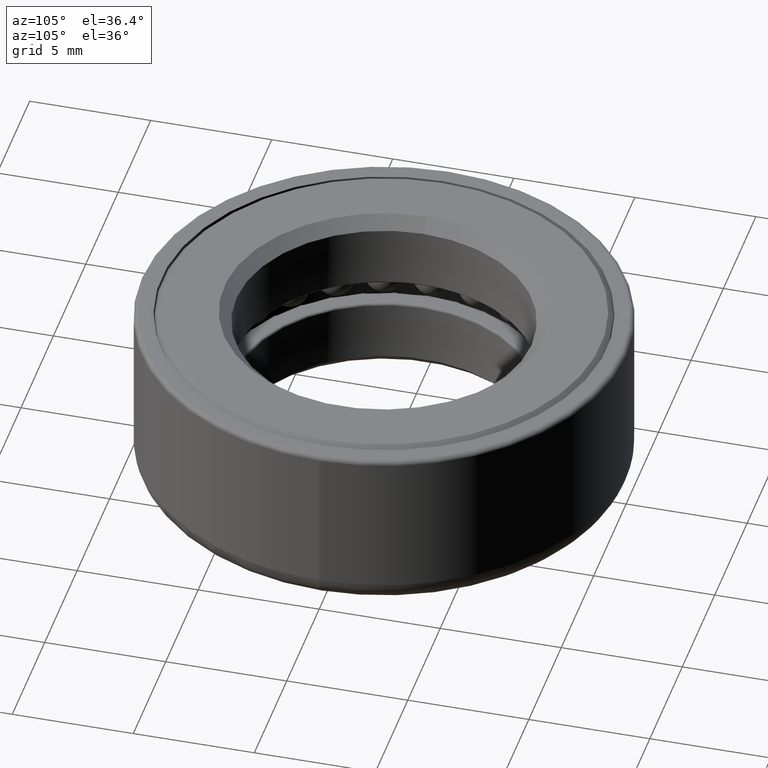
[diagram: clean part render]
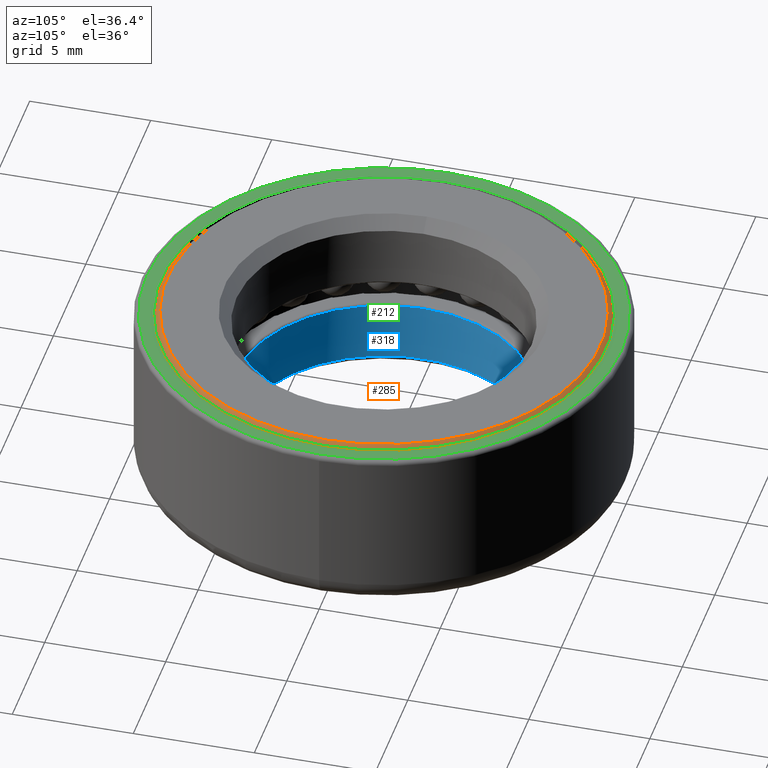
[diagram: same view with three faces highlighted in distinct colors, each labeled with its STEP entity id]
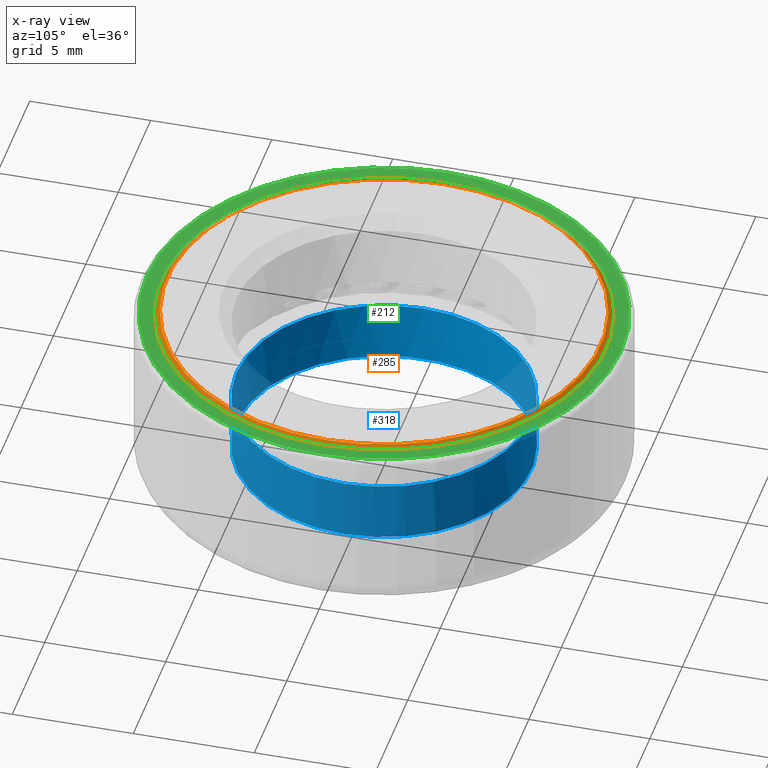
[diagram: x-ray of the same camera — body ghosted, the three highlighted faces saturated]
A machine part, auxiliary view with three faces highlighted in distinct colors.
The next image is the same camera in x-ray (body ghosted, the three faces saturated) — at least one of them is partly hidden behind the body in this view.
Their STEP definitions:

[orange] entity #285 — the highlighted conical surface has half-angle 45 deg.
#23 = CIRCLE ( 'NONE', #541, 9.149999999999998600 ) ;
#30 = DIRECTION ( 'NONE',  ( -0.0000000000000000000, -0.0000000000000000000, 1.000000000000000000 ) ) ;
#43 = CARTESIAN_POINT ( 'NONE',  ( -8.949999999999995700, 0.0000000000000000000, 3.600000000000000100 ) ) ;
#174 = VERTEX_POINT ( 'NONE', #296 ) ;
#197 = DIRECTION ( 'NONE',  ( -1.000000000000000000, 0.0000000000000000000, 0.0000000000000000000 ) ) ;
#222 = DIRECTION ( 'NONE',  ( -1.000000000000000000, 0.0000000000000000000, 0.0000000000000000000 ) ) ;
#226 = FACE_OUTER_BOUND ( 'NONE', #720, .T. ) ;
#235 = FACE_BOUND ( 'NONE', #602, .T. ) ;
#285 = ADVANCED_FACE ( 'NONE', ( #226, #235 ), #696, .T. ) ;
#296 = CARTESIAN_POINT ( 'NONE',  ( -9.149999999999998600, 0.0000000000000000000, 3.399999999999997700 ) ) ;
#300 = ORIENTED_EDGE ( 'NONE', *, *, #516, .F. ) ;
#321 = ORIENTED_EDGE ( 'NONE', *, *, #761, .F. ) ;
#360 = VERTEX_POINT ( 'NONE', #43 ) ;
#388 = CARTESIAN_POINT ( 'NONE',  ( 0.0000000000000000000, 0.0000000000000000000, 3.399999999999997700 ) ) ;
#389 = CARTESIAN_POINT ( 'NONE',  ( 0.0000000000000000000, 0.0000000000000000000, 3.600000000000000100 ) ) ;
#450 = AXIS2_PLACEMENT_3D ( 'NONE', #465, #30, #222 ) ;
#455 = DIRECTION ( 'NONE',  ( -1.000000000000000000, 0.0000000000000000000, 0.0000000000000000000 ) ) ;
#465 = CARTESIAN_POINT ( 'NONE',  ( 0.0000000000000000000, 0.0000000000000000000, 3.600000000000000100 ) ) ;
#509 = DIRECTION ( 'NONE',  ( 0.0000000000000000000, 0.0000000000000000000, -1.000000000000000000 ) ) ;
#516 = EDGE_CURVE ( 'NONE', #174, #174, #23, .T. ) ;
#541 = AXIS2_PLACEMENT_3D ( 'NONE', #388, #682, #455 ) ;
#586 = CIRCLE ( 'NONE', #450, 8.949999999999995700 ) ;
#602 = EDGE_LOOP ( 'NONE', ( #321 ) ) ;
#654 = AXIS2_PLACEMENT_3D ( 'NONE', #389, #509, #197 ) ;
#682 = DIRECTION ( 'NONE',  ( 0.0000000000000000000, 0.0000000000000000000, -1.000000000000000000 ) ) ;
#696 = CONICAL_SURFACE ( 'NONE', #654, 8.949999999999995700, 0.7853981633974482800 ) ;
#720 = EDGE_LOOP ( 'NONE', ( #300 ) ) ;
#761 = EDGE_CURVE ( 'NONE', #360, #360, #586, .T. ) ;

[blue] entity #318 — the highlighted cylindrical surface (bore or boss wall) has radius 6.1 mm, axis along (-0, -0, 1).
#22 = ORIENTED_EDGE ( 'NONE', *, *, #782, .T. ) ;
#28 = CARTESIAN_POINT ( 'NONE',  ( 0.0000000000000000000, 0.0000000000000000000, -0.6000000000000002000 ) ) ;
#48 = VERTEX_POINT ( 'NONE', #401 ) ;
#65 = ORIENTED_EDGE ( 'NONE', *, *, #217, .T. ) ;
#67 = AXIS2_PLACEMENT_3D ( 'NONE', #487, #246, #611 ) ;
#78 = DIRECTION ( 'NONE',  ( -0.0000000000000000000, -0.0000000000000000000, 1.000000000000000000 ) ) ;
#102 = AXIS2_PLACEMENT_3D ( 'NONE', #28, #209, #282 ) ;
#115 = FACE_OUTER_BOUND ( 'NONE', #351, .T. ) ;
#209 = DIRECTION ( 'NONE',  ( -0.0000000000000000000, -0.0000000000000000000, 1.000000000000000000 ) ) ;
#217 = EDGE_CURVE ( 'NONE', #48, #48, #439, .T. ) ;
#243 = EDGE_LOOP ( 'NONE', ( #22 ) ) ;
#246 = DIRECTION ( 'NONE',  ( -0.0000000000000000000, -0.0000000000000000000, -1.000000000000000000 ) ) ;
#268 = CYLINDRICAL_SURFACE ( 'NONE', #486, 6.099999999999999600 ) ;
#282 = DIRECTION ( 'NONE',  ( -1.000000000000000000, 0.0000000000000000000, 0.0000000000000000000 ) ) ;
#318 = ADVANCED_FACE ( 'NONE', ( #430, #115 ), #268, .F. ) ;
#348 = VERTEX_POINT ( 'NONE', #414 ) ;
#351 = EDGE_LOOP ( 'NONE', ( #65 ) ) ;
#365 = DIRECTION ( 'NONE',  ( 1.000000000000000000, 0.0000000000000000000, 0.0000000000000000000 ) ) ;
#401 = CARTESIAN_POINT ( 'NONE',  ( 6.099999999999999600, 0.0000000000000000000, -3.100000000000001000 ) ) ;
#414 = CARTESIAN_POINT ( 'NONE',  ( -6.099999999999999600, 0.0000000000000000000, -0.6000000000000002000 ) ) ;
#430 = FACE_OUTER_BOUND ( 'NONE', #243, .T. ) ;
#439 = CIRCLE ( 'NONE', #67, 6.099999999999999600 ) ;
#452 = CARTESIAN_POINT ( 'NONE',  ( 0.0000000000000000000, 0.0000000000000000000, 0.0000000000000000000 ) ) ;
#486 = AXIS2_PLACEMENT_3D ( 'NONE', #452, #78, #365 ) ;
#487 = CARTESIAN_POINT ( 'NONE',  ( 0.0000000000000000000, 0.0000000000000000000, -3.100000000000001000 ) ) ;
#611 = DIRECTION ( 'NONE',  ( 1.000000000000000000, 0.0000000000000000000, 0.0000000000000000000 ) ) ;
#662 = CIRCLE ( 'NONE', #102, 6.099999999999999600 ) ;
#782 = EDGE_CURVE ( 'NONE', #348, #348, #662, .T. ) ;

[green] entity #212 — the highlighted planar face has unit normal (0, 0, -1).
#1 = PLANE ( 'NONE',  #569 ) ;
#61 = DIRECTION ( 'NONE',  ( -1.000000000000000000, 0.0000000000000000000, -0.0000000000000000000 ) ) ;
#104 = AXIS2_PLACEMENT_3D ( 'NONE', #442, #378, #728 ) ;
#127 = DIRECTION ( 'NONE',  ( 0.0000000000000000000, 0.0000000000000000000, -1.000000000000000000 ) ) ;
#166 = EDGE_CURVE ( 'NONE', #390, #390, #441, .T. ) ;
#192 = DIRECTION ( 'NONE',  ( -1.000000000000000000, 0.0000000000000000000, 0.0000000000000000000 ) ) ;
#195 = CARTESIAN_POINT ( 'NONE',  ( 0.0000000000000000000, 0.0000000000000000000, 3.500000000000000000 ) ) ;
#212 = ADVANCED_FACE ( 'NONE', ( #783, #278 ), #1, .F. ) ;
#273 = DIRECTION ( 'NONE',  ( -0.0000000000000000000, -0.0000000000000000000, 1.000000000000000000 ) ) ;
#276 = EDGE_LOOP ( 'NONE', ( #322 ) ) ;
#278 = FACE_BOUND ( 'NONE', #320, .T. ) ;
#311 = CIRCLE ( 'NONE', #694, 9.799999999999998900 ) ;
#320 = EDGE_LOOP ( 'NONE', ( #522 ) ) ;
#322 = ORIENTED_EDGE ( 'NONE', *, *, #502, .T. ) ;
#336 = CARTESIAN_POINT ( 'NONE',  ( 9.199999999999997500, 0.0000000000000000000, 3.500000000000000000 ) ) ;
#378 = DIRECTION ( 'NONE',  ( -0.0000000000000000000, -0.0000000000000000000, 1.000000000000000000 ) ) ;
#382 = CARTESIAN_POINT ( 'NONE',  ( 0.0000000000000000000, 9.999999999999998200, 3.500000000000000000 ) ) ;
#390 = VERTEX_POINT ( 'NONE', #336 ) ;
#441 = CIRCLE ( 'NONE', #104, 9.199999999999997500 ) ;
#442 = CARTESIAN_POINT ( 'NONE',  ( 0.0000000000000000000, 0.0000000000000000000, 3.500000000000000000 ) ) ;
#502 = EDGE_CURVE ( 'NONE', #563, #563, #311, .T. ) ;
#522 = ORIENTED_EDGE ( 'NONE', *, *, #166, .F. ) ;
#563 = VERTEX_POINT ( 'NONE', #596 ) ;
#569 = AXIS2_PLACEMENT_3D ( 'NONE', #382, #127, #61 ) ;
#596 = CARTESIAN_POINT ( 'NONE',  ( -9.799999999999998900, 0.0000000000000000000, 3.500000000000000000 ) ) ;
#694 = AXIS2_PLACEMENT_3D ( 'NONE', #195, #273, #192 ) ;
#728 = DIRECTION ( 'NONE',  ( 1.000000000000000000, 0.0000000000000000000, 0.0000000000000000000 ) ) ;
#783 = FACE_OUTER_BOUND ( 'NONE', #276, .T. ) ;